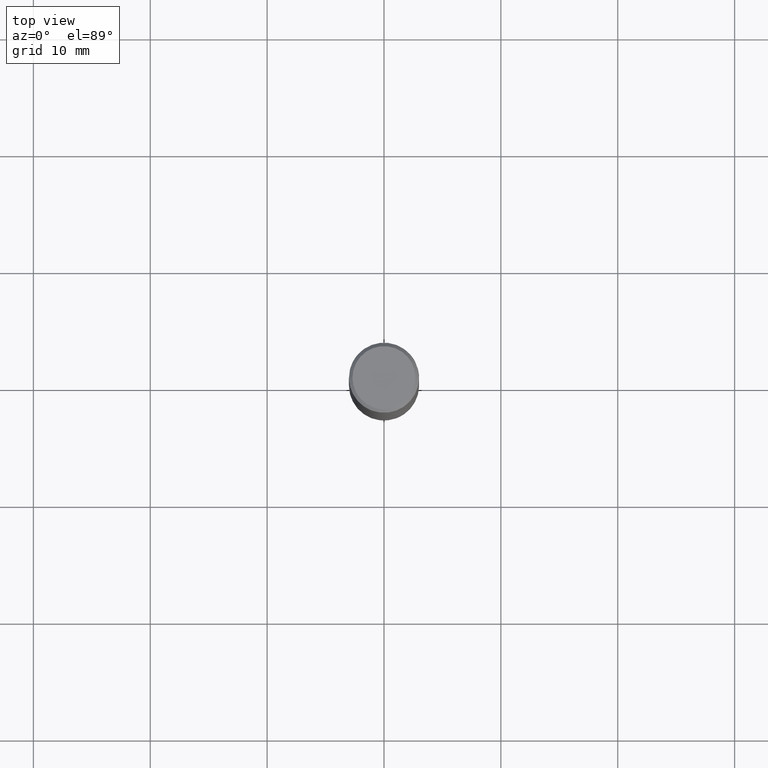
[diagram: clean part render]
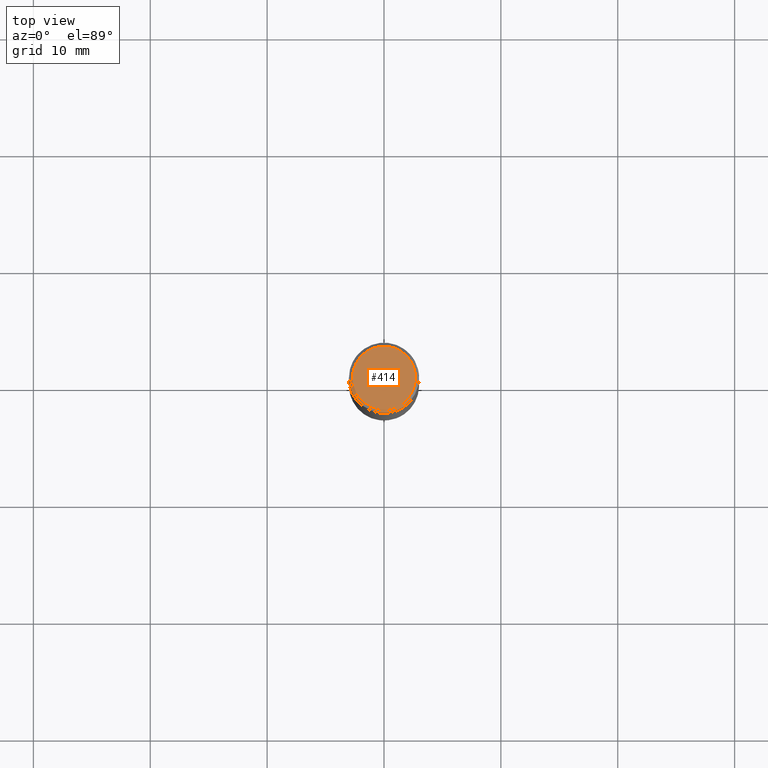
[diagram: same view with one face highlighted and labeled with its STEP entity id]
A machine part, top view. The second image highlights one B-rep face of the part: STEP entity #414.
In plain terms, the highlighted planar face has unit normal (-0, -0, 1).
Its self-contained STEP definition (entity closure, byte-faithful):
#374 = VERTEX_POINT('', #375);
#375 = CARTESIAN_POINT('', (-2.7, 1.65327317884893E-16, 0.));
#381 = EDGE_CURVE('', #374, #374, #382, .T.);
#382 = CIRCLE('', #383, 2.7);
#383 = AXIS2_PLACEMENT_3D('', #384, #385, #386);
#384 = CARTESIAN_POINT('', (6.74700668366753E-80, -4.13135006948962E-96, 0.));
#385 = DIRECTION('', (3.74939945665464E-33, 6.12323399573677E-17, -1.));
#386 = DIRECTION('', (-1., 6.12323399573677E-17, 0.));
#414 = ADVANCED_FACE('', (#415), #418, .T.);
#415 = FACE_OUTER_BOUND('', #416, .T.);
#416 = EDGE_LOOP('', (#417));
#417 = ORIENTED_EDGE('', *, *, #381, .F.);
#418 = PLANE('', #419);
#419 = AXIS2_PLACEMENT_3D('', #420, #421, #422);
#420 = CARTESIAN_POINT('', (4.20021428024809, -4.20021428024809, 1.07962619604318E-14));
#421 = DIRECTION('', (-2.63163976207445E-15, -6.12323399573677E-17, 1.));
#422 = DIRECTION('', (0., 1., 6.12323399573677E-17));